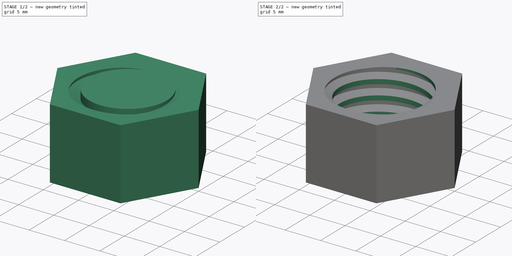
[diagram: build sequence overview — one tinted view per stage of 2, left to right]
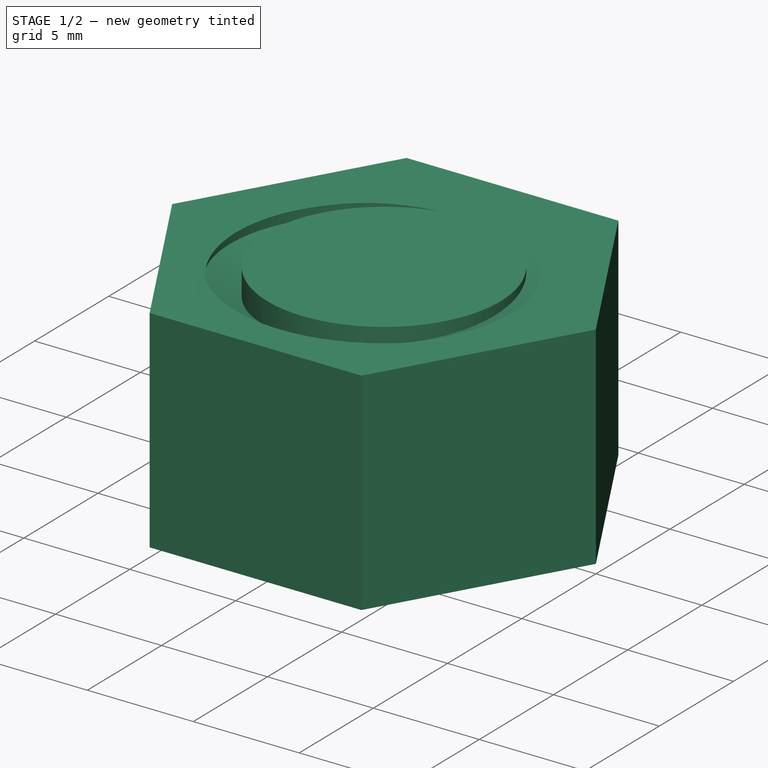
[diagram: stage 1 of 2 — iso view after this stage's code; geometry added in this stage tinted green]
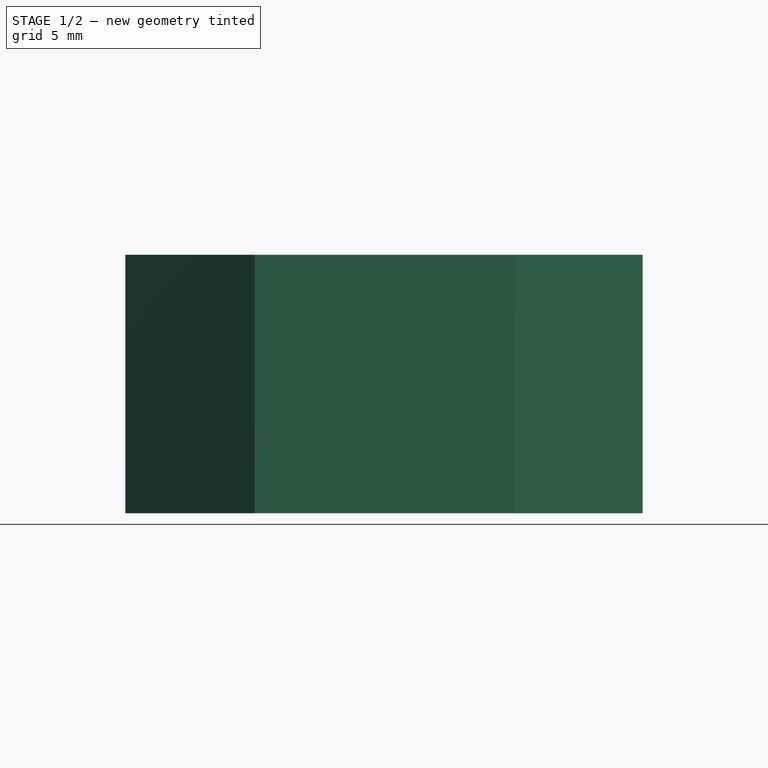
[diagram: stage 1 of 2 — front view after this stage's code; geometry added in this stage tinted green]
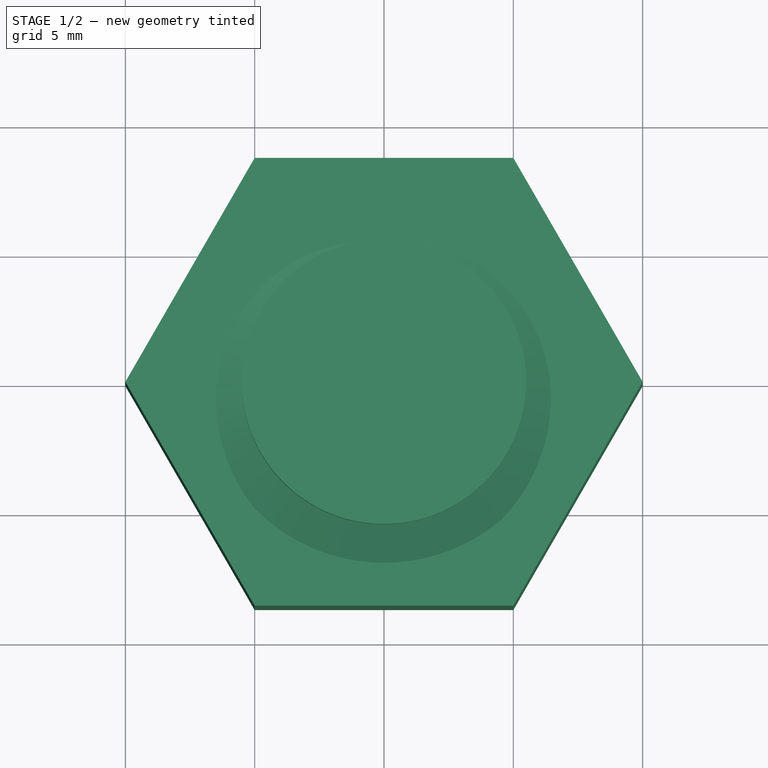
[diagram: stage 1 of 2 — top view after this stage's code; geometry added in this stage tinted green]
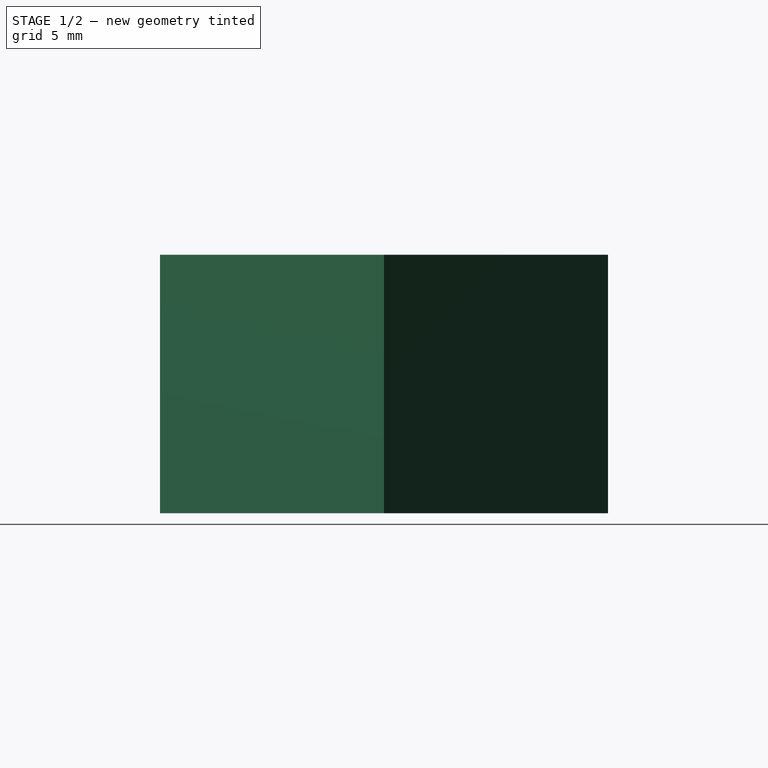
[diagram: stage 1 of 2 — right view after this stage's code; geometry added in this stage tinted green]
FCSTD DOCUMENT  (FreeCAD 0.21R33771 (Git))
Label: halfInchBoltNut
License: All rights reserved
LicenseURL: http://en.wikipedia.org/wiki/All_rights_reserved
objects: Sketcher::SketchObject×3, PartDesign::Pad×1, Spreadsheet::Sheet×1, PartDesign::SubtractiveHelix×1, PartDesign::Pocket×1, PartDesign::Body×1
note: 10 computed .brp shape members not serialized (recipe doc carries the construction recipe); baked Part::Feature solids carry a one-line shape summary decoded from their .brp

FEATURE [Sketcher::SketchObject] Sketch
  FullyConstrained = true
  MapMode = 5
  Support = -> [XY_Plane]
  expr: Constraints[1] = Spreadsheet.BoltHoleOuterR
  expr: Constraints[21] = Spreadsheet.BoltHoleOuterR + 3
  sketch-geometry (8):
    g0: Circle CenterX=0 CenterY=0 CenterZ=0 NormalX=0 NormalY=0 NormalZ=1 AngleXU=0 Radius=7
    g1: LineSegment StartX=5 StartY=-8.66025 StartZ=0 EndX=10 EndY=0 EndZ=0
    g2: LineSegment StartX=10 StartY=0 StartZ=0 EndX=5 EndY=8.66025 EndZ=0
    g3: LineSegment StartX=5 StartY=8.66025 StartZ=0 EndX=-5 EndY=8.66025 EndZ=0
    g4: LineSegment StartX=-5 StartY=8.66025 StartZ=0 EndX=-10 EndY=2.1849e-12 EndZ=0
    g5: LineSegment StartX=-10 StartY=2.1846e-12 StartZ=0 EndX=-5 EndY=-8.66025 EndZ=0
    g6: LineSegment StartX=-5 StartY=-8.66025 StartZ=0 EndX=5 EndY=-8.66025 EndZ=0
    g7: Circle CenterX=0 CenterY=0 CenterZ=0 NormalX=0 NormalY=0 NormalZ=1 AngleXU=0 Radius=10
  constraints (18):
    c: Coincident(g0,g-1)
    c: Radius(g0) = 7
    c: Coincident(g1,g2)
    c: Coincident(g2,g3)
    c: Coincident(g3,g4)
    c: Coincident(g4,g5)
    c: Coincident(g5,g6)
    c: Coincident(g6,g1)
    c: Equal(g1, g2-g6) x5
    c: PointOnObject(g1,g7)
    c: PointOnObject(g2,g7)
    c: PointOnObject(g3,g7)
    c: PointOnObject(g4,g7)
    c: PointOnObject(g5,g7)
    c: PointOnObject(g6,g7)
    c: Coincident(g7,g0)
    c: PointOnObject(g1,g-1)
    c: Radius(g7) = 10
FEATURE [PartDesign::Pad] Pad
  Direction = (0,0,1)
  Length = 10
  Length2 = 10
  Profile = -> Sketch
  ReferenceAxis = -> Sketch [N_Axis]
  Type = 0
  expr: Length = Spreadsheet.NutLen
FEATURE [Spreadsheet::Sheet] Spreadsheet
  cells = A2='BoltHoleOuterR; B2(BoltHoleOuterR)==13 / 2 + 0.5; A3='BoltHoleInnerR; B3(BoltHoleInnerR)==BoltHoleOuterR - ThreadDepth; A4='BoltPitch; B4(BoltPitch)=1.954; A5='NutLen; B5(NutLen)=10; A7='ThreadDepth; B7(ThreadDepth)=1; A8='ThreadAdj; B8(ThreadAdj)=0.5; A9='BoltTopPitch; B9(BoltTopPitch)=0.5
FEATURE [Sketcher::SketchObject] Sketch001  label="Sketch001Thread"
  FullyConstrained = true
  MapMode = 5
  Placement = pos=(0,0,0) rot=(1,0,0;1.5708rad)
  Support = -> [XZ_Plane]
  expr: Constraints[0] = Spreadsheet.ThreadDepth + Spreadsheet.ThreadAdj
  expr: Constraints[14] = Spreadsheet.BoltTopPitch
  expr: Constraints[1] = Spreadsheet.BoltPitch - 0.02
  expr: Constraints[5] = Spreadsheet.BoltHoleInnerR - Spreadsheet.ThreadAdj
  expr: Constraints[9] = Spreadsheet.BoltPitch / 2
  sketch-geometry (5):
    g0: LineSegment StartX=5.5 StartY=-2.934 StartZ=0 EndX=7 EndY=-2.207 EndZ=0
    g1: LineSegment StartX=7 StartY=-1.707 StartZ=0 EndX=5.5 EndY=-1 EndZ=0
    g2: LineSegment StartX=5.5 StartY=-1 StartZ=0 EndX=5.5 EndY=-2.934 EndZ=0
    g3: LineSegment StartX=5.5 StartY=-1.957 StartZ=0 EndX=7 EndY=-1.957 EndZ=0
    g4: LineSegment StartX=7 StartY=-1.707 StartZ=0 EndX=7 EndY=-2.207 EndZ=0
  constraints (15):
    c: DistanceX(g1,g1) = 1.5
    c: DistanceY(g2,g2) = 1.934
    c: Coincident(g2,g1)
    c: Coincident(g2,g0)
    c: Vertical(g2)
    c: DistanceX(g-1,g1) = 5.5
    c: DistanceY(g1,g-1) = 1
    c: PointOnObject(g3,g2)
    c: Horizontal(g3)
    c: DistanceY(g0,g3) = 0.977
    c: Coincident(g4,g1)
    c: Coincident(g4,g0)
    c: PointOnObject(g3,g4)
    c: Symmetric(g1,g0,g3)
    c: DistanceY(g4,g4) = 0.5
FEATURE [PartDesign::SubtractiveHelix] SubtractiveHelix
  Angle = 0
  Axis = (0,2e-16,1)
  Base = (0,0,0)
  BaseFeature = -> Pad
  Growth = 0
  HasBeenEdited = true
  Height = 50.25
  LeftHanded = false
  Mode = 0
  Outside = false
  Pitch = 2.0818
  Profile = -> Sketch001
  ReferenceAxis = -> Sketch001 [V_Axis]
  Turns = 24.1378
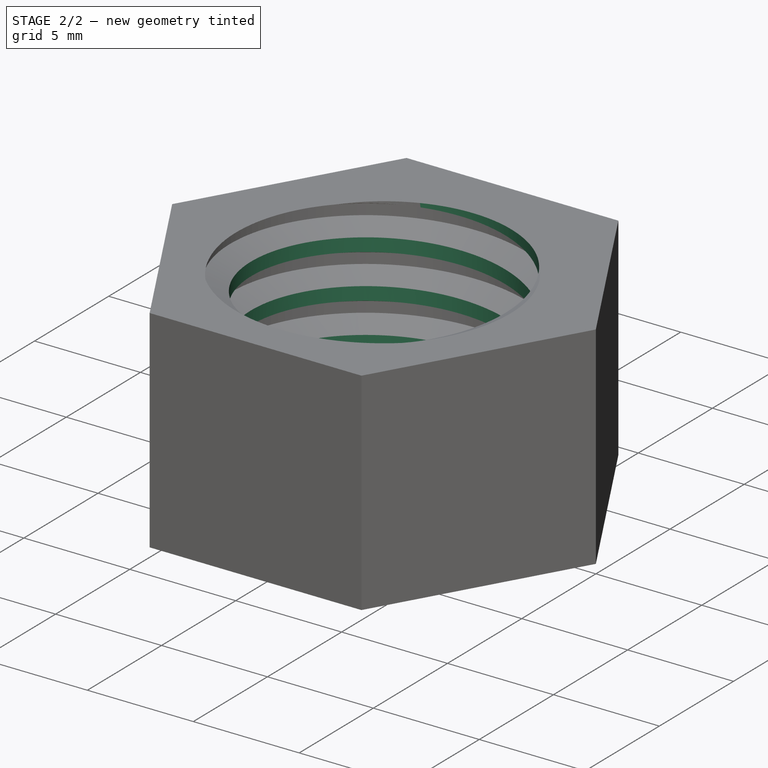
[diagram: stage 2 of 2 — iso view after this stage's code; geometry added in this stage tinted green]
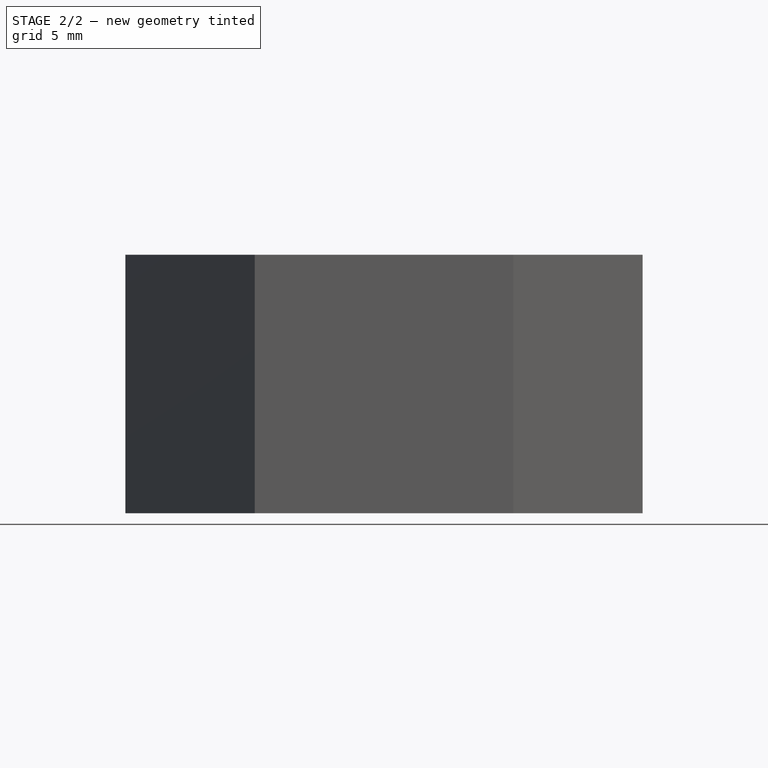
[diagram: stage 2 of 2 — front view after this stage's code; geometry added in this stage tinted green]
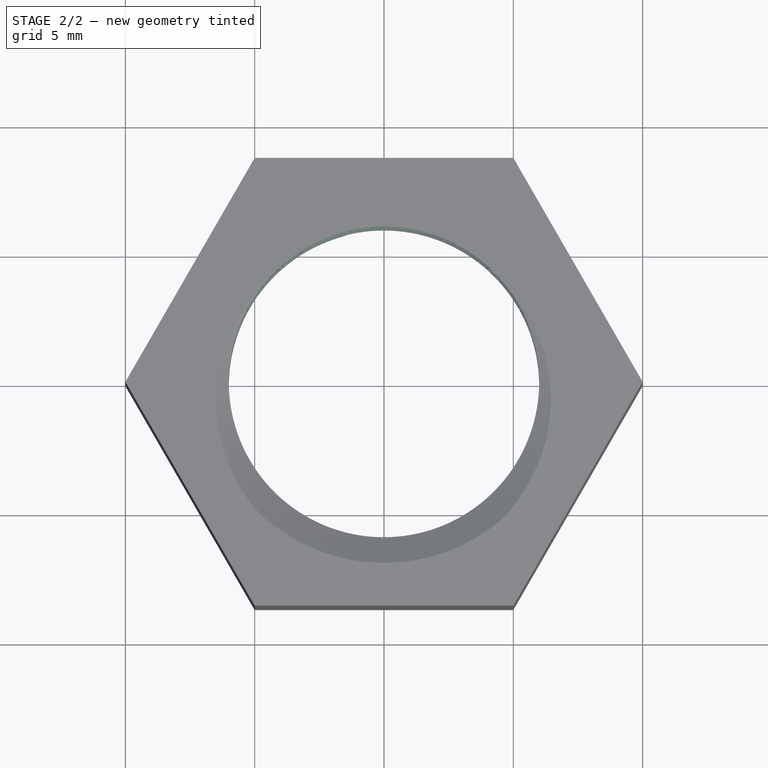
[diagram: stage 2 of 2 — top view after this stage's code; geometry added in this stage tinted green]
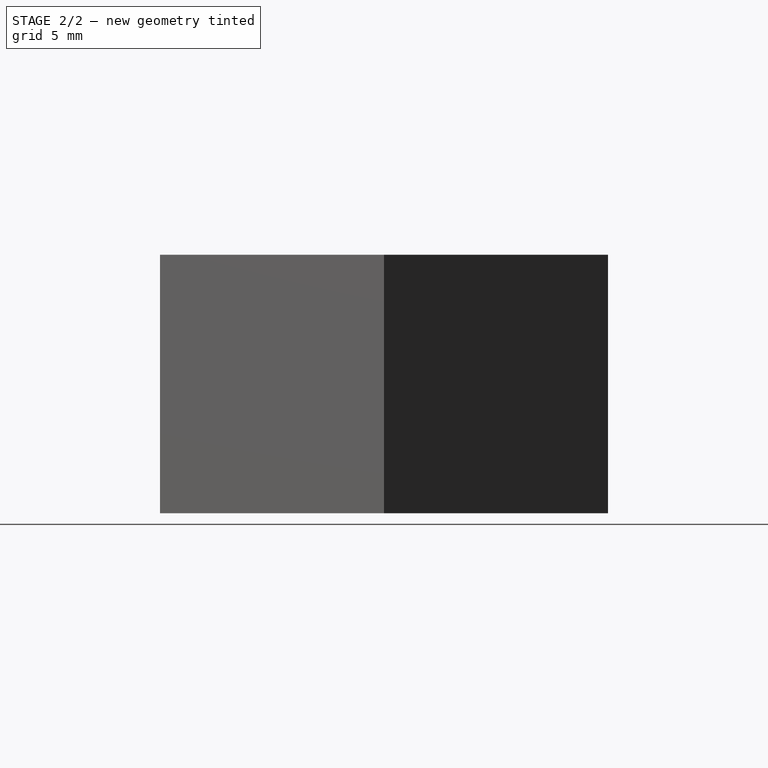
[diagram: stage 2 of 2 — right view after this stage's code; geometry added in this stage tinted green]
FEATURE [Sketcher::SketchObject] Sketch002
  FullyConstrained = true
  MapMode = 5
  Support = -> [XY_Plane]
  expr: Constraints[1] = Spreadsheet.BoltHoleInnerR
  sketch-geometry (1):
    g0: Circle CenterX=0 CenterY=0 CenterZ=0 NormalX=0 NormalY=0 NormalZ=1 AngleXU=0 Radius=6
  constraints (2):
    c: Coincident(g0,g-1)
    c: Radius(g0) = 6
FEATURE [PartDesign::Pocket] Pocket
  BaseFeature = -> SubtractiveHelix
  Direction = (0,0,-1)
  Length = 5
  Length2 = 5
  Profile = -> Sketch002
  ReferenceAxis = -> Sketch002 [N_Axis]
  Reversed = true
  Type = 1
FEATURE [PartDesign::Body] Body
  Group = -> [Sketch,Pad,Sketch001,SubtractiveHelix,Sketch002,Pocket]
  Origin = -> Origin
  Tip = -> Pocket
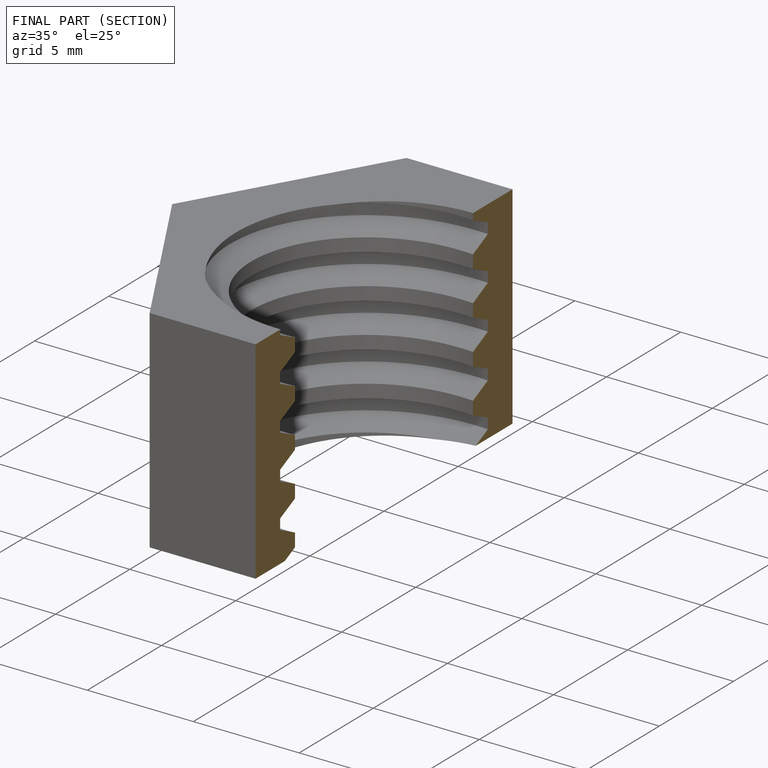
[diagram: finished part — half-section view (interior)]
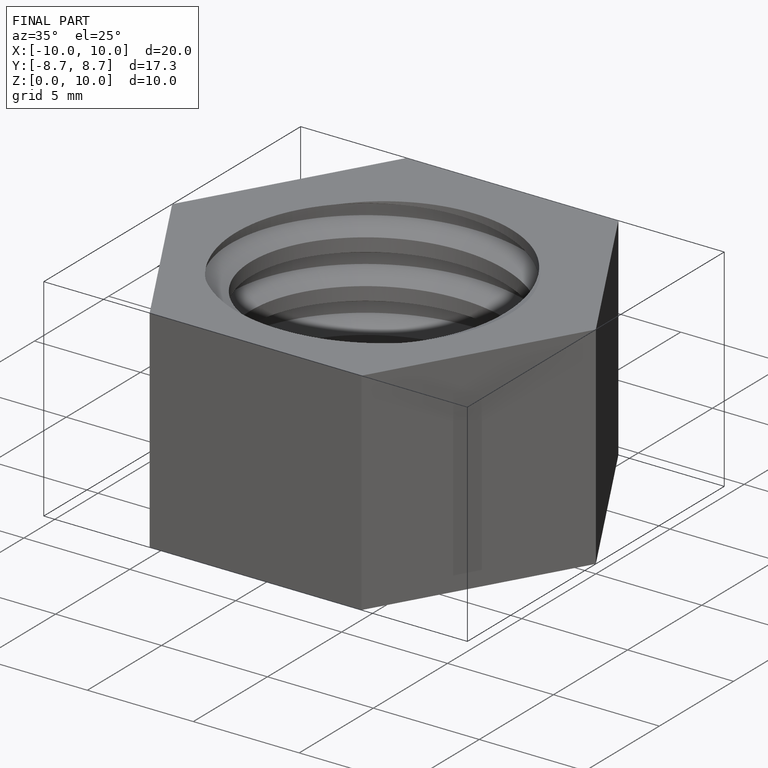
[diagram: finished part — iso view with bounding-box wireframe]
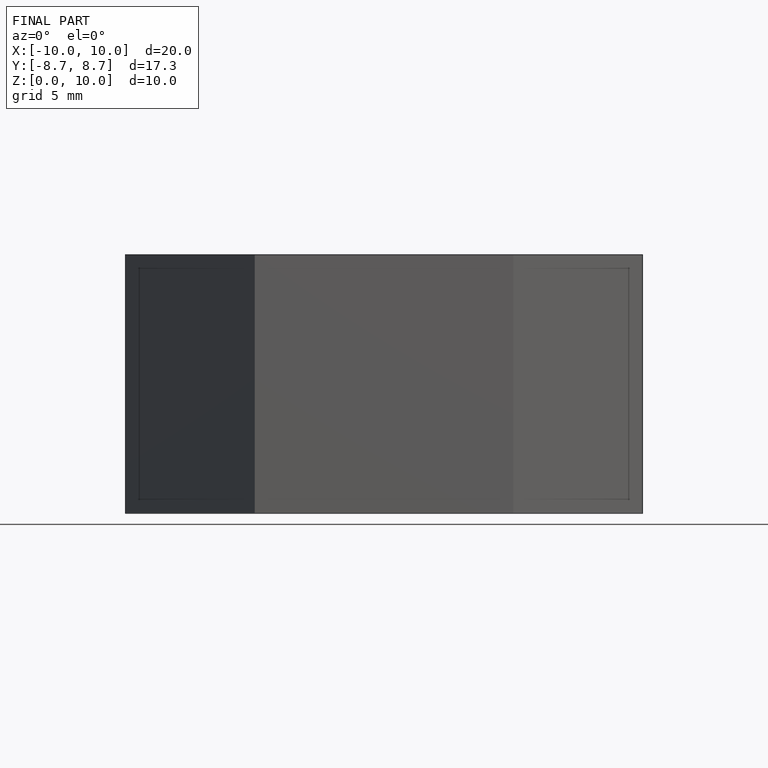
[diagram: finished part — front view with bounding-box wireframe]
